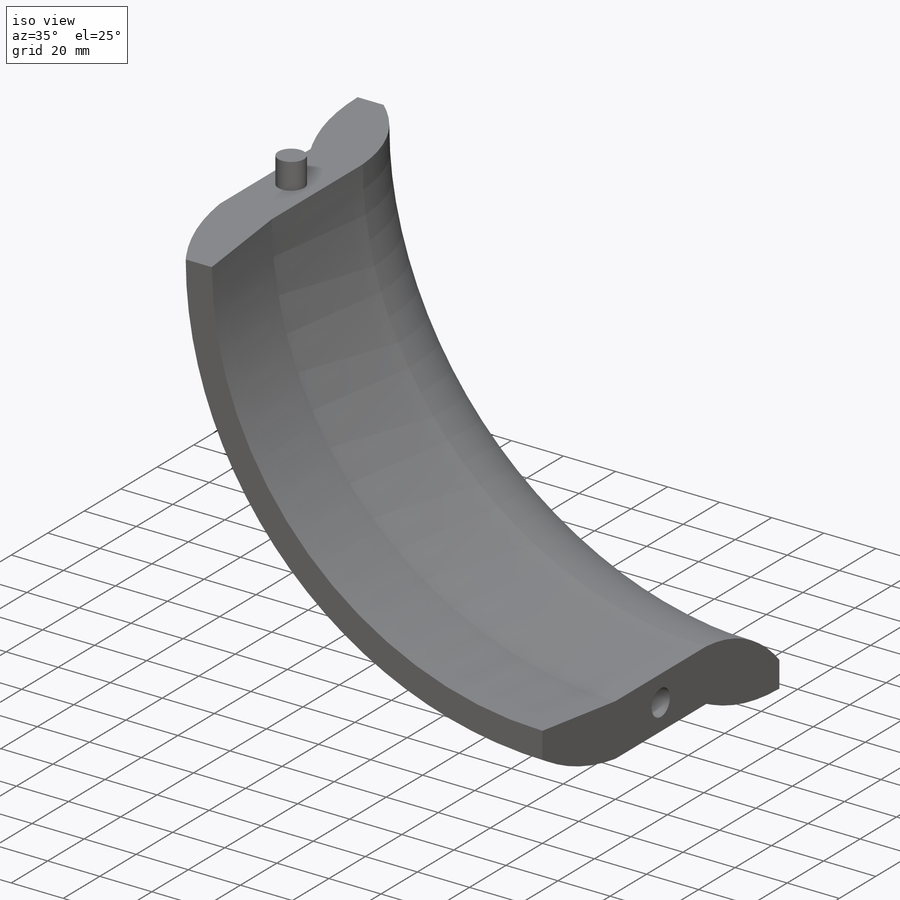
[diagram: iso view]
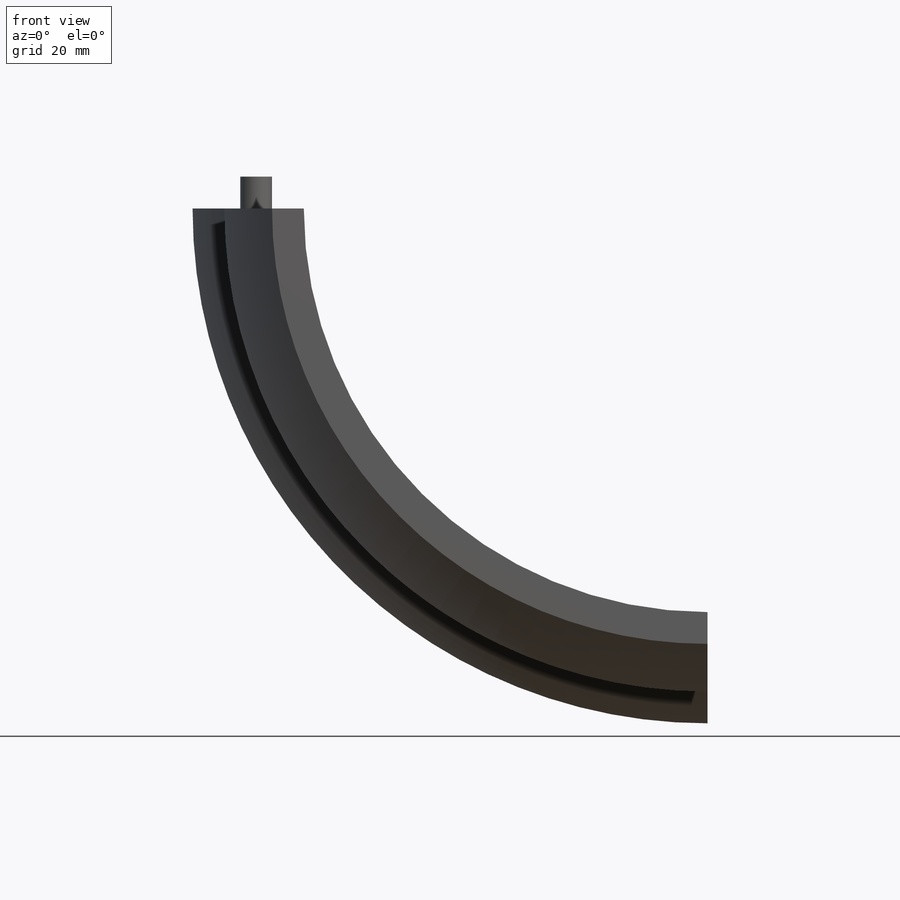
[diagram: front view]
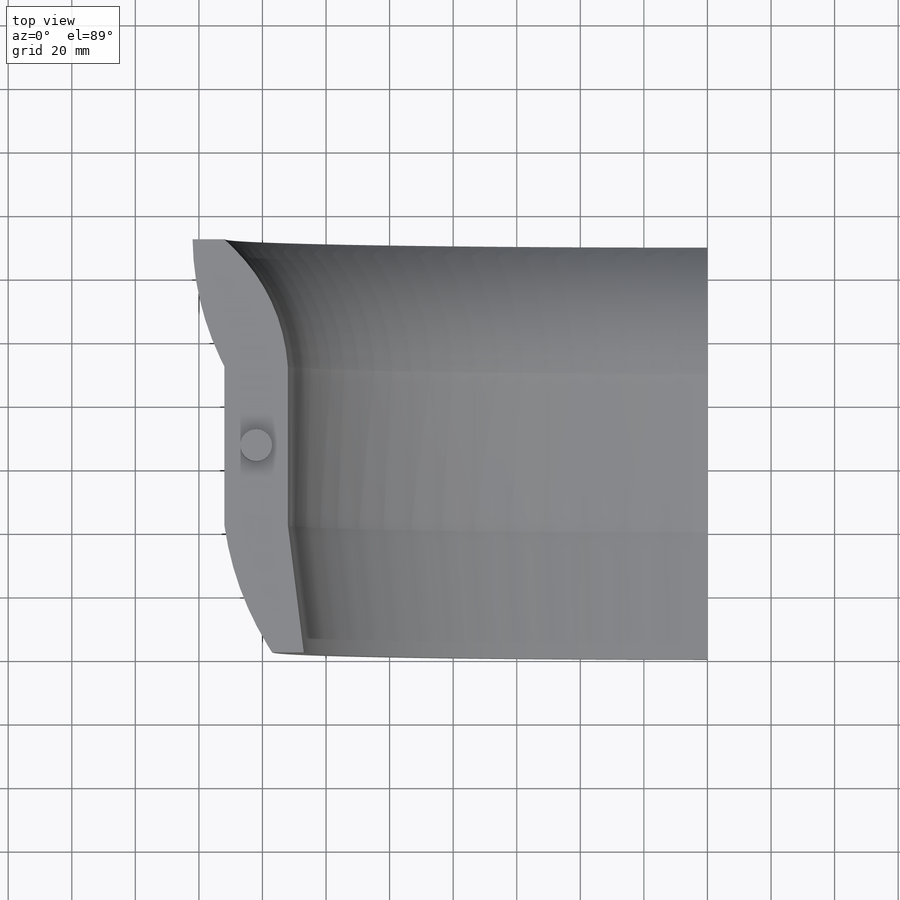
[diagram: top view]
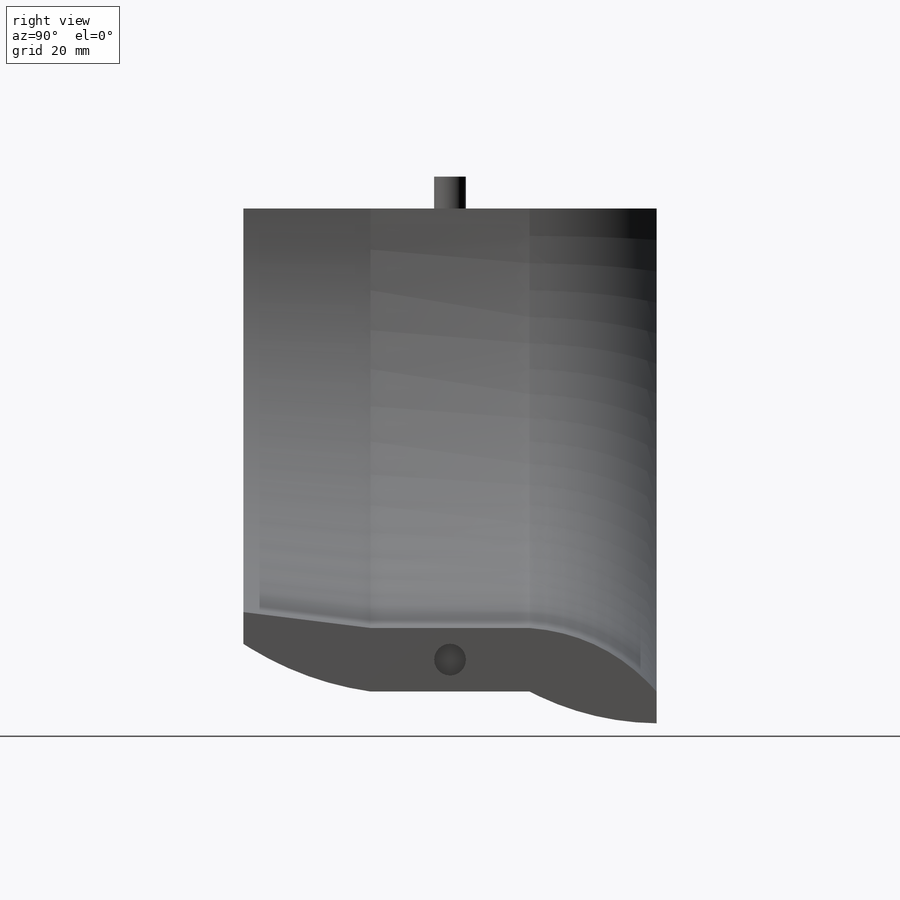
[diagram: right view]
SOLIDWORKS PART (.sldprt)
format: sldprt  version: not decoded by parser v0  size: 209,920 bytes
history: native  units: mm
features: plane x3, sketch x3, material x1, revolve x1, extrude x1, cut_extrude x1 (+10 scaffold rows collapsed)
feature tree (20):
  scaffold x10  (default folders/planes/origin — collapsed)
  material  "Matériau <non spécifié>"
  plane  "Plan de face"
  plane  "Plan de dessus"
  plane  "Plan de droite"
  sketch  "Esquisse1"  dims[D1=10.0mm D2=152.0mm D3=132.0mm D4=20.0mm D5=40.0mm D6=50.0mm D7=15.0mm D8=7.5mm D9=10.0mm D10=40.0mm D11=5.0mm D12=2.5mm D13=15.0mm]
  revolve  "Révolution1"  Angle=90deg
  sketch  "Esquisse2"  dims[D1=10.0mm D2=10.0mm D3=25.0mm]
  extrude  "Boss.-Extru.1"  Depth=10mm
  sketch  "Esquisse3"  dims[D1=10.0mm D2=10.0mm D3=25.0mm]
  cut_extrude  "Enlèv. mat.-Extru.1"  Depth=10mm
decode coverage: 6 of 6 modeling features carry decoded parameters
note: suppression state not decoded; provenance and decode notes live in map.json
